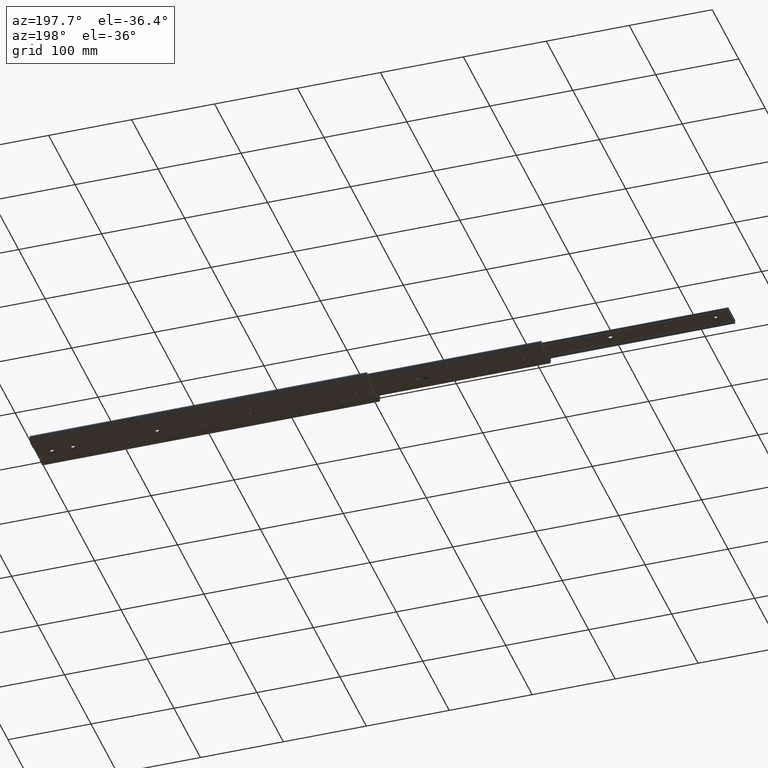
[diagram: clean part render]
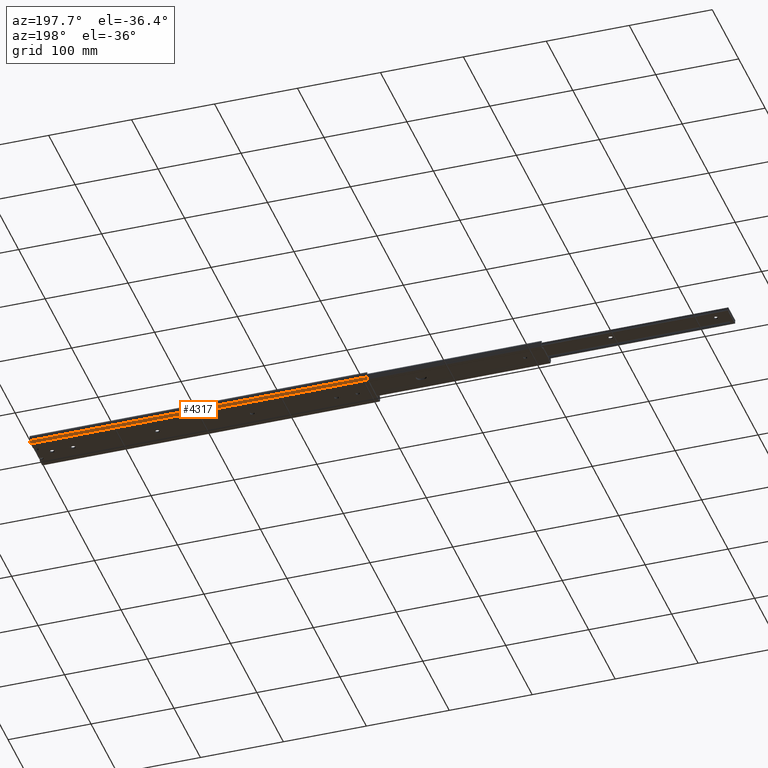
[diagram: same view with one face highlighted and labeled with its STEP entity id]
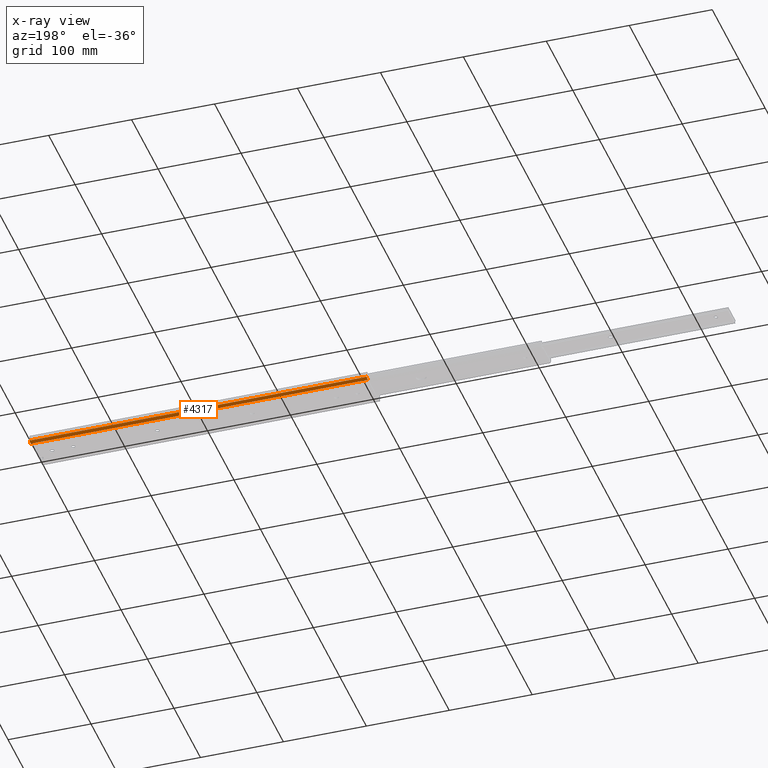
[diagram: x-ray of the same camera — body ghosted, the highlighted face saturated]
A machine part, auxiliary view. The second image highlights one B-rep face of the part: STEP entity #4317.
The next image is the same camera in x-ray: the body ghosted, the highlighted face saturated — about 0% of this face is hidden behind the body in this view.
In plain terms, the highlighted cylindrical surface (edge-blend (fillet) strip) has radius 3.7 mm, axis along (-1, -0, -0).
Its self-contained STEP definition (entity closure, byte-faithful):
#59 = ORIENTED_EDGE ( 'NONE', *, *, #6103, .T. ) ;
#151 = FACE_OUTER_BOUND ( 'NONE', #3007, .T. ) ;
#1204 = CARTESIAN_POINT ( 'NONE',  ( 0.0000000000000000000, 21.29985872422196300, 3.699999999999845600 ) ) ;
#1227 = EDGE_CURVE ( 'NONE', #5391, #7515, #7017, .T. ) ;
#1686 = DIRECTION ( 'NONE',  ( 0.0000000000000000000, 0.0000000000000000000, 1.000000000000000000 ) ) ;
#1787 = VERTEX_POINT ( 'NONE', #3684 ) ;
#2168 = ORIENTED_EDGE ( 'NONE', *, *, #7536, .F. ) ;
#2300 = DIRECTION ( 'NONE',  ( -1.000000000000000000, -0.0000000000000000000, -0.0000000000000000000 ) ) ;
#2365 = DIRECTION ( 'NONE',  ( 1.000000000000000000, 0.0000000000000000000, 0.0000000000000000000 ) ) ;
#2618 = DIRECTION ( 'NONE',  ( 0.0000000000000000000, 0.0000000000000000000, -1.000000000000000000 ) ) ;
#2706 = ORIENTED_EDGE ( 'NONE', *, *, #6988, .F. ) ;
#2858 = CARTESIAN_POINT ( 'NONE',  ( 406.3999999999999800, 21.29985872422196300, 3.699999999999845600 ) ) ;
#2890 = AXIS2_PLACEMENT_3D ( 'NONE', #5984, #2365, #6593 ) ;
#2896 = CARTESIAN_POINT ( 'NONE',  ( 406.3999999999999800, 24.71196252478537000, 2.269074546253362800 ) ) ;
#2977 = CARTESIAN_POINT ( 'NONE',  ( 406.3999999999999800, 24.71196252478537000, 2.269074546253362800 ) ) ;
#3005 = AXIS2_PLACEMENT_3D ( 'NONE', #1204, #3746, #2618 ) ;
#3007 = EDGE_LOOP ( 'NONE', ( #6941, #2168, #2706, #59 ) ) ;
#3136 = LINE ( 'NONE', #4398, #6367 ) ;
#3149 = DIRECTION ( 'NONE',  ( -1.000000000000000000, -0.0000000000000000000, -0.0000000000000000000 ) ) ;
#3661 = LINE ( 'NONE', #2896, #6326 ) ;
#3684 = CARTESIAN_POINT ( 'NONE',  ( 406.3999999999999800, 21.29985872422196600, 8.673617379884035500E-016 ) ) ;
#3746 = DIRECTION ( 'NONE',  ( 1.000000000000000000, 0.0000000000000000000, 0.0000000000000000000 ) ) ;
#4145 = AXIS2_PLACEMENT_3D ( 'NONE', #2858, #5304, #1686 ) ;
#4317 = ADVANCED_FACE ( 'NONE', ( #151 ), #4782, .T. ) ;
#4398 = CARTESIAN_POINT ( 'NONE',  ( 406.3999999999999800, 21.29985872422196600, 8.673617379884035500E-016 ) ) ;
#4782 = CYLINDRICAL_SURFACE ( 'NONE', #4145, 3.699999999999844700 ) ;
#5304 = DIRECTION ( 'NONE',  ( -1.000000000000000000, -0.0000000000000000000, -0.0000000000000000000 ) ) ;
#5391 = VERTEX_POINT ( 'NONE', #7145 ) ;
#5440 = VERTEX_POINT ( 'NONE', #2977 ) ;
#5849 = CIRCLE ( 'NONE', #2890, 3.699999999999844700 ) ;
#5893 = CARTESIAN_POINT ( 'NONE',  ( 0.0000000000000000000, 24.71196252478537000, 2.269074546253362800 ) ) ;
#5984 = CARTESIAN_POINT ( 'NONE',  ( 406.3999999999999800, 21.29985872422196300, 3.699999999999845600 ) ) ;
#6103 = EDGE_CURVE ( 'NONE', #1787, #5391, #3136, .T. ) ;
#6326 = VECTOR ( 'NONE', #2300, 1000.000000000000000 ) ;
#6367 = VECTOR ( 'NONE', #3149, 1000.000000000000000 ) ;
#6593 = DIRECTION ( 'NONE',  ( 0.0000000000000000000, 0.0000000000000000000, -1.000000000000000000 ) ) ;
#6941 = ORIENTED_EDGE ( 'NONE', *, *, #1227, .T. ) ;
#6988 = EDGE_CURVE ( 'NONE', #1787, #5440, #5849, .T. ) ;
#7017 = CIRCLE ( 'NONE', #3005, 3.699999999999844700 ) ;
#7145 = CARTESIAN_POINT ( 'NONE',  ( 0.0000000000000000000, 21.29985872422196600, 8.673617379884035500E-016 ) ) ;
#7515 = VERTEX_POINT ( 'NONE', #5893 ) ;
#7536 = EDGE_CURVE ( 'NONE', #5440, #7515, #3661, .T. ) ;